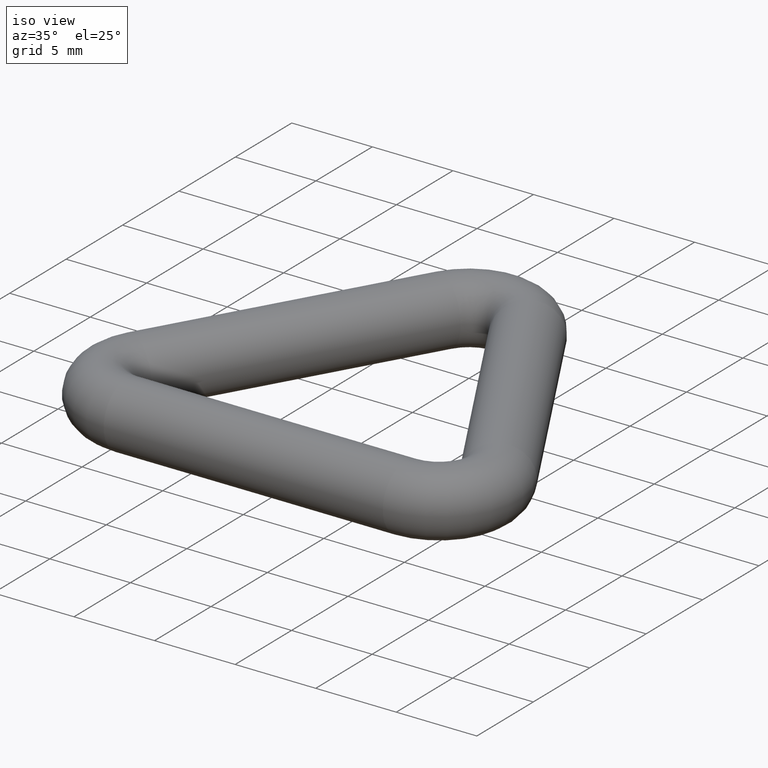
[diagram: clean part render]
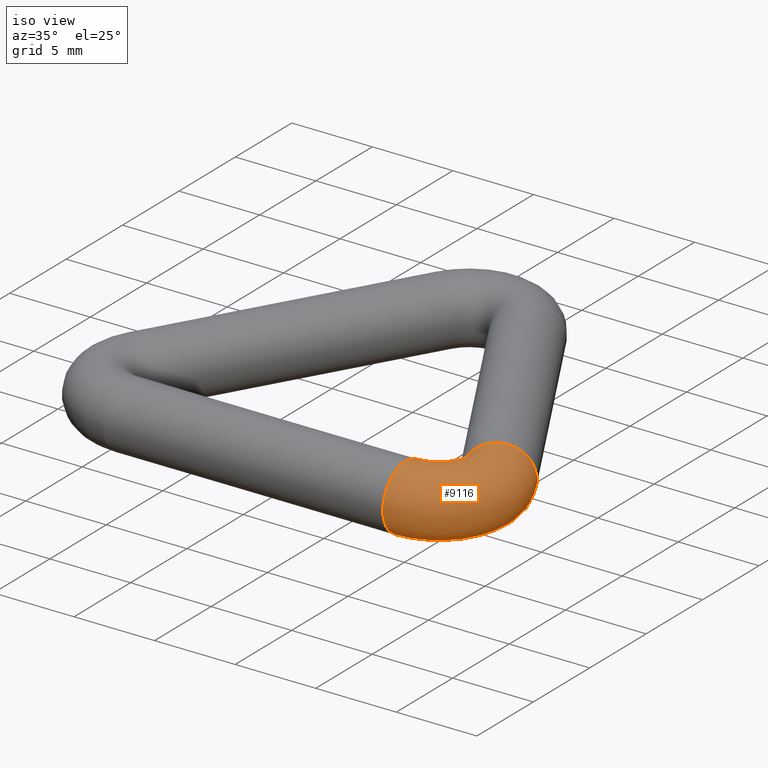
[diagram: same view with one face highlighted and labeled with its STEP entity id]
A machine part, iso view. The second image highlights one B-rep face of the part: STEP entity #9116.
In plain terms, the highlighted toroidal blend (fillet) surface has major radius 3 mm and minor (blend) radius 2 mm.
Its self-contained STEP definition (entity closure, byte-faithful):
#871 = ORIENTED_EDGE ( 'NONE', *, *, #5707, .T. ) ;
#956 = EDGE_CURVE ( 'NONE', #4850, #4850, #6764, .T. ) ;
#1711 = VERTEX_POINT ( 'NONE', #5247 ) ;
#3623 = FACE_OUTER_BOUND ( 'NONE', #4950, .T. ) ;
#3972 = ORIENTED_EDGE ( 'NONE', *, *, #956, .F. ) ;
#4608 = CIRCLE ( 'NONE', #10177, 2.000000000000000000 ) ;
#4850 = VERTEX_POINT ( 'NONE', #7830 ) ;
#4950 = EDGE_LOOP ( 'NONE', ( #871 ) ) ;
#4951 = CARTESIAN_POINT ( 'NONE',  ( 11.25833024919765400, 6.499999999999996400, 0.0000000000000000000 ) ) ;
#5156 = CARTESIAN_POINT ( 'NONE',  ( 8.660254037844334000, 2.000000000000000000, 0.0000000000000000000 ) ) ;
#5163 = CARTESIAN_POINT ( 'NONE',  ( 8.660254037844334000, 5.000000000000001800, 0.0000000000000000000 ) ) ;
#5247 = CARTESIAN_POINT ( 'NONE',  ( 8.660254037844334000, 2.000000000000000000, -2.000000000000000000 ) ) ;
#5707 = EDGE_CURVE ( 'NONE', #1711, #1711, #4608, .T. ) ;
#5731 = AXIS2_PLACEMENT_3D ( 'NONE', #5163, #10588, #9662 ) ;
#5865 = DIRECTION ( 'NONE',  ( -0.4999999999999980000, 0.8660254037844400400, 0.0000000000000000000 ) ) ;
#6648 = TOROIDAL_SURFACE ( 'NONE', #5731, 3.000000000000001800, 2.000000000000000000 ) ;
#6764 = CIRCLE ( 'NONE', #10438, 1.999999999999999600 ) ;
#6823 = EDGE_LOOP ( 'NONE', ( #3972 ) ) ;
#7039 = FACE_OUTER_BOUND ( 'NONE', #6823, .T. ) ;
#7830 = CARTESIAN_POINT ( 'NONE',  ( 11.25833024919765400, 6.499999999999996400, -1.999999999999999600 ) ) ;
#7888 = DIRECTION ( 'NONE',  ( 1.000000000000000000, 0.0000000000000000000, 0.0000000000000000000 ) ) ;
#9116 = ADVANCED_FACE ( 'NONE', ( #3623, #7039 ), #6648, .T. ) ;
#9610 = DIRECTION ( 'NONE',  ( 0.0000000000000000000, 0.0000000000000000000, -1.000000000000000000 ) ) ;
#9662 = DIRECTION ( 'NONE',  ( 1.000000000000000000, 0.0000000000000000000, 0.0000000000000000000 ) ) ;
#10177 = AXIS2_PLACEMENT_3D ( 'NONE', #5156, #7888, #9610 ) ;
#10438 = AXIS2_PLACEMENT_3D ( 'NONE', #4951, #5865, #11058 ) ;
#10588 = DIRECTION ( 'NONE',  ( 0.0000000000000000000, 0.0000000000000000000, 1.000000000000000000 ) ) ;
#11058 = DIRECTION ( 'NONE',  ( 0.0000000000000000000, 0.0000000000000000000, -1.000000000000000000 ) ) ;